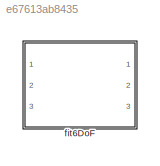
MODEL slx_e67613ab8435
KIND library
CONFIG AbsTol = auto
CONFIG EnableMultiTasking = off
CONFIG FixedStep = auto
CONFIG MaxStep = auto
CONFIG MinStep = auto
CONFIG RelTol = 1e-3
CONFIG SampleTimeConstraint = Unconstrained
CONFIG Solver = VariableStepAuto
CONFIG SolverName = VariableStepAuto
CONFIG StartTime = 0.0
CONFIG StopTime = 10.0
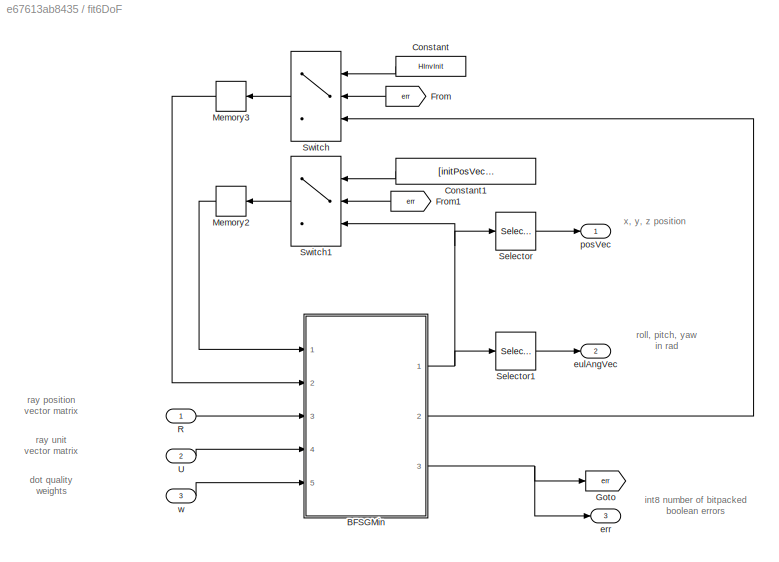
BLOCK [SubSystem] fit6DoF
  Ports = [3, 3]
  RequestExecContextInheritance = off
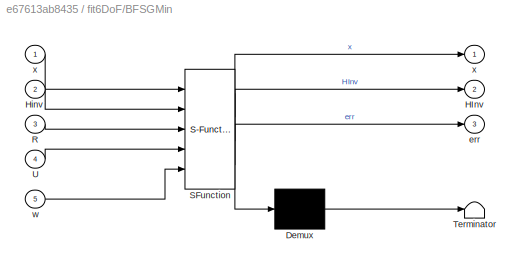
BLOCK [SubSystem] fit6DoF/BFSGMin
  ErrorFcn = Stateflow.Translate.translate
  PermitHierarchicalResolution = ExplicitOnly
  Ports = [5, 3]
  RequestExecContextInheritance = off
  SFBlockType = MATLAB Function
  TreatAsAtomicUnit = on
BLOCK [Demux] fit6DoF/BFSGMin/ Demux 
  Outputs = 1
  Ports = [1, 1]
BLOCK [S-Function] fit6DoF/BFSGMin/ SFunction 
  EnableBusSupport = off
  FunctionName = sf_sfun
  Parameters = D,angTolBFGS,angTolGS,dxEul,dxPos,maxIBFGS,maxIBP,maxIGS,posTolBFGS,posTolGS,stepSize
  PortCounts = [5 4]
  Ports = [5, 4]
  SFcnIsStateOwnerBlock = off
  SFunctionDeploymentMode = off
  Tag = Stateflow S-Function fit6DoF_ul 2
BLOCK [Terminator] fit6DoF/BFSGMin/ Terminator 
BLOCK [Outport] fit6DoF/BFSGMin/HInv
  IconDisplay = Port number
  Port = 2
BLOCK [Inport] fit6DoF/BFSGMin/Hinv
  IconDisplay = Port number
  Port = 2
BLOCK [Inport] fit6DoF/BFSGMin/R
  IconDisplay = Port number
  Port = 3
BLOCK [Inport] fit6DoF/BFSGMin/U
  IconDisplay = Port number
  Port = 4
BLOCK [Outport] fit6DoF/BFSGMin/err
  IconDisplay = Port number
  Port = 3
BLOCK [Inport] fit6DoF/BFSGMin/w
  IconDisplay = Port number
  Port = 5
BLOCK [Outport] fit6DoF/BFSGMin/x
  IconDisplay = Port number
BLOCK [Inport] fit6DoF/BFSGMin/x 
  IconDisplay = Port number
BLOCK [Constant] fit6DoF/Constant
  Value = HInvInit
BLOCK [Constant] fit6DoF/Constant1
  Value = [initPosVec(:) ; initEulAng(:)]
BLOCK [From] fit6DoF/From
  GotoTag = err
BLOCK [From] fit6DoF/From1
  GotoTag = err
BLOCK [Goto] fit6DoF/Goto
  GotoTag = err
BLOCK [Memory] fit6DoF/Memory2
  InheritSampleTime = on
  InitialCondition = [initPosVec(:) ; initEulAng(:)]
BLOCK [Memory] fit6DoF/Memory3
  InheritSampleTime = on
  InitialCondition = HInvInit
BLOCK [Inport] fit6DoF/R
  IconDisplay = Port number
BLOCK [Selector] fit6DoF/Selector
  IndexOptions = Index vector (dialog)
  Indices = 1:3
  InputPortWidth = 6
  OutputSizes = 1
  Ports = [1, 1]
BLOCK [Selector] fit6DoF/Selector1
  IndexOptions = Index vector (dialog)
  Indices = 4:6
  InputPortWidth = 6
  OutputSizes = 1
  Ports = [1, 1]
BLOCK [Switch] fit6DoF/Switch
  Criteria = u2 > Threshold
  InputSameDT = off
  SaturateOnIntegerOverflow = off
BLOCK [Switch] fit6DoF/Switch1
  Criteria = u2 > Threshold
  InputSameDT = off
  SaturateOnIntegerOverflow = off
BLOCK [Inport] fit6DoF/U
  IconDisplay = Port number
  Port = 2
BLOCK [Outport] fit6DoF/err
  IconDisplay = Port number
  Port = 3
BLOCK [Outport] fit6DoF/eulAngVec
  IconDisplay = Port number
  Port = 2
BLOCK [Outport] fit6DoF/posVec
  IconDisplay = Port number
BLOCK [Inport] fit6DoF/w
  IconDisplay = Port number
  Port = 3
ANNOTATION fit6DoF: x, y, z position
ANNOTATION fit6DoF: dot quality weights
ANNOTATION fit6DoF: ray unit vector matrix
ANNOTATION fit6DoF: ray position vector matrix
ANNOTATION fit6DoF: int8 number of bitpacked boolean errors
ANNOTATION fit6DoF: roll, pitch, yaw in rad
NET fit6DoF/BFSGMin:1 -> fit6DoF/Selector1:1, fit6DoF/Selector:1, fit6DoF/Switch1:3
LINE fit6DoF/BFSGMin:2 -> fit6DoF/Switch:3
NET fit6DoF/BFSGMin:3 -> fit6DoF/Goto:1, fit6DoF/err:1
LINE fit6DoF/Constant1:1 -> fit6DoF/Switch1:1
LINE fit6DoF/Constant:1 -> fit6DoF/Switch:1
LINE fit6DoF/From1:1 -> fit6DoF/Switch1:2
LINE fit6DoF/From:1 -> fit6DoF/Switch:2
LINE fit6DoF/Memory2:1 -> fit6DoF/BFSGMin:1
LINE fit6DoF/Memory3:1 -> fit6DoF/BFSGMin:2
LINE fit6DoF/R:1 -> fit6DoF/BFSGMin:3
LINE fit6DoF/Selector1:1 -> fit6DoF/eulAngVec:1
LINE fit6DoF/Selector:1 -> fit6DoF/posVec:1
LINE fit6DoF/Switch1:1 -> fit6DoF/Memory2:1
LINE fit6DoF/Switch:1 -> fit6DoF/Memory3:1
LINE fit6DoF/U:1 -> fit6DoF/BFSGMin:4
LINE fit6DoF/w:1 -> fit6DoF/BFSGMin:5
note: NET lines group one-source signal fan-out (src -> all destinations, sorted); 1:1 wires keep LINE
CHART fit6DoF/BFSGMin states=1 transitions=1
  STATE_LABEL 'eML_blk_kernel()'
  STATE_LABEL 'SCRIPT:\nfunction [x,HInv,err] = fcn(x,Hinv,R,U,w,...\n    dxPos, dxEul,stepSize,...\n    maxIBFGS, maxIGS, maxIBP,...\n    posTolBFGS, posTolGS,...\n    angTolBFGS, angTolGS, D)\n\n%#codegen\n[x,HInv,err] = BFGS(x(:),Hinv,R,D,U,w,...\n    [dxPos(:) ; dxEul(:)],stepSize,...\n    maxIBFGS,maxIGS,maxIBP,...\n    posTolBFGS,posTolGS,...\n    angTolBFGS,angTolGS);\n'
